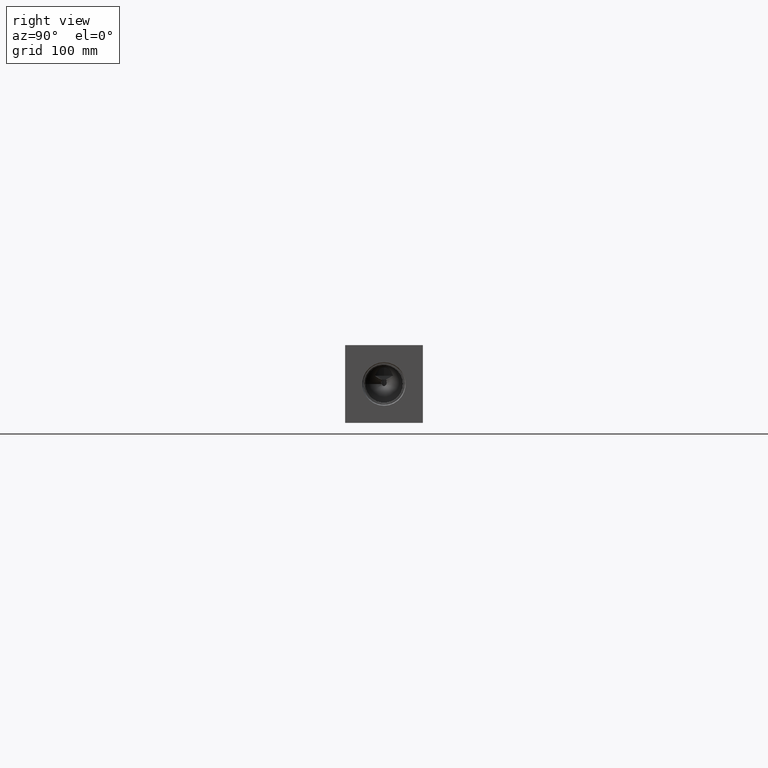
[diagram: clean part render]
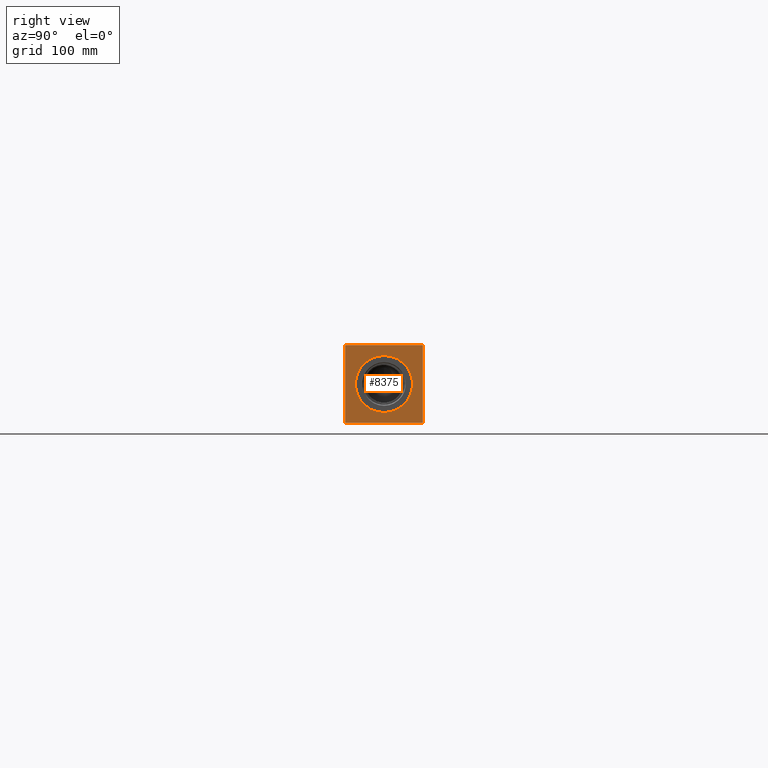
[diagram: same view with one face highlighted and labeled with its STEP entity id]
A machine part, right view. The second image highlights one B-rep face of the part: STEP entity #8375.
In plain terms, the highlighted planar face has unit normal (1, 0, 0).
Its self-contained STEP definition (entity closure, byte-faithful):
#294=CIRCLE('',#8872,32.5628);
#295=CIRCLE('',#8873,32.5628);
#389=FACE_BOUND('',#1682,.T.);
#1180=FACE_OUTER_BOUND('',#1681,.T.);
#1681=EDGE_LOOP('',(#7398,#7399,#7400,#7401));
#1682=EDGE_LOOP('',(#7402,#7403));
#1925=LINE('',#12989,#2647);
#2410=LINE('',#14681,#3132);
#2411=LINE('',#14684,#3133);
#2412=LINE('',#14685,#3134);
#2647=VECTOR('',#9264,10.);
#3132=VECTOR('',#10695,10.);
#3133=VECTOR('',#10698,10.);
#3134=VECTOR('',#10699,10.);
#3433=VERTEX_POINT('',#12986);
#3434=VERTEX_POINT('',#12988);
#3885=VERTEX_POINT('',#14583);
#3886=VERTEX_POINT('',#14584);
#3918=VERTEX_POINT('',#14679);
#3919=VERTEX_POINT('',#14683);
#4365=EDGE_CURVE('',#3433,#3434,#1925,.T.);
#5037=EDGE_CURVE('',#3885,#3886,#294,.T.);
#5038=EDGE_CURVE('',#3886,#3885,#295,.T.);
#5084=EDGE_CURVE('',#3918,#3434,#2410,.T.);
#5085=EDGE_CURVE('',#3919,#3918,#2411,.T.);
#5086=EDGE_CURVE('',#3919,#3433,#2412,.T.);
#7398=ORIENTED_EDGE('',*,*,#5085,.T.);
#7399=ORIENTED_EDGE('',*,*,#5084,.T.);
#7400=ORIENTED_EDGE('',*,*,#4365,.F.);
#7401=ORIENTED_EDGE('',*,*,#5086,.F.);
#7402=ORIENTED_EDGE('',*,*,#5037,.T.);
#7403=ORIENTED_EDGE('',*,*,#5038,.T.);
#7640=PLANE('',#8919);
#8375=ADVANCED_FACE('',(#1180,#389),#7640,.T.);
#8872=AXIS2_PLACEMENT_3D('',#14585,#10584,#10585);
#8873=AXIS2_PLACEMENT_3D('',#14586,#10586,#10587);
#8919=AXIS2_PLACEMENT_3D('',#14682,#10696,#10697);
#9264=DIRECTION('',(0.,1.,0.));
#10584=DIRECTION('center_axis',(-1.,0.,0.));
#10585=DIRECTION('ref_axis',(0.,0.,-1.));
#10586=DIRECTION('center_axis',(-1.,0.,0.));
#10587=DIRECTION('ref_axis',(0.,0.,-1.));
#10695=DIRECTION('',(0.,0.,1.));
#10696=DIRECTION('center_axis',(1.,0.,0.));
#10697=DIRECTION('ref_axis',(0.,1.,0.));
#10698=DIRECTION('',(0.,1.,0.));
#10699=DIRECTION('',(0.,0.,1.));
#12986=CARTESIAN_POINT('',(825.5,0.,88.9));
#12988=CARTESIAN_POINT('',(825.5,88.9,88.9));
#12989=CARTESIAN_POINT('',(825.5,0.,88.9));
#14583=CARTESIAN_POINT('',(825.5,44.45,11.8872));
#14584=CARTESIAN_POINT('',(825.5,44.45,77.0128));
#14585=CARTESIAN_POINT('Origin',(825.5,44.45,44.45));
#14586=CARTESIAN_POINT('Origin',(825.5,44.45,44.45));
#14679=CARTESIAN_POINT('',(825.5,88.9,0.));
#14681=CARTESIAN_POINT('',(825.5,88.9,0.));
#14682=CARTESIAN_POINT('Origin',(825.5,0.,0.));
#14683=CARTESIAN_POINT('',(825.5,0.,0.));
#14684=CARTESIAN_POINT('',(825.5,0.,0.));
#14685=CARTESIAN_POINT('',(825.5,0.,0.));